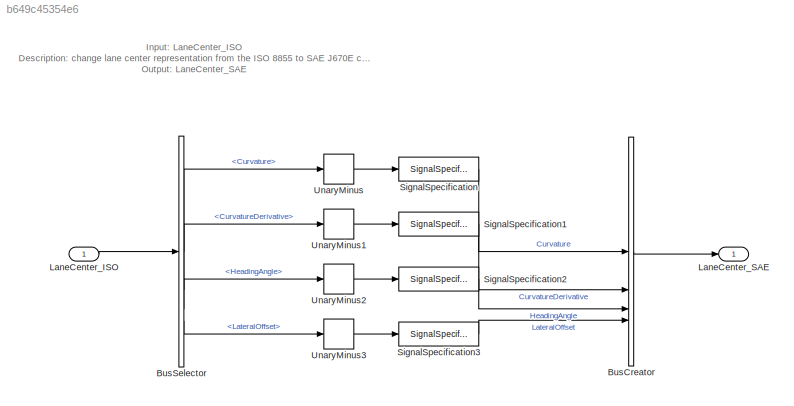
MODEL slx_b649c45354e6
KIND model
CONFIG AbsTol = auto
CONFIG EnableMultiTasking = on
CONFIG FixedStep = auto
CONFIG MaxStep = auto
CONFIG MinStep = auto
CONFIG RelTol = 1e-3
CONFIG SampleTimeConstraint = Unconstrained
CONFIG SolverName = FixedStepDiscrete
CONFIG StartTime = 0.0
CONFIG StopTime = 10.0
BLOCK [BusCreator] BusCreator
  DisplayOption = bar
  InheritFromInputs = on
  Inputs = 4
  OutDataTypeStr = Bus: BusLaneCenter
BLOCK [BusSelector] BusSelector
  OutputSignals = Curvature,CurvatureDerivative,HeadingAngle,LateralOffset
BLOCK [Inport] LaneCenter_ISO
  OutDataTypeStr = Bus: BusLaneCenter
  PortDimensions = 1
  SampleTime = Ts
BLOCK [Outport] LaneCenter_SAE
  OutDataTypeStr = Bus: BusLaneCenter
  PortDimensions = 1
  SampleTime = Ts
  VectorParamsAs1DForOutWhenUnconnected = off
BLOCK [SignalSpecification] SignalSpecification
  Unit = 1/m
BLOCK [SignalSpecification] SignalSpecification1
  Unit = 1/m^2
BLOCK [SignalSpecification] SignalSpecification2
  Unit = rad
BLOCK [SignalSpecification] SignalSpecification3
  Unit = m
BLOCK [UnaryMinus] UnaryMinus
BLOCK [UnaryMinus] UnaryMinus1
BLOCK [UnaryMinus] UnaryMinus2
BLOCK [UnaryMinus] UnaryMinus3
ANNOTATION (root): Input: LaneCenter_ISO Description: change lane center representation from the ISO 8855 to SAE J670E coordinate system. In SO 8855 positive Y is to the left, whereas it is to the right in SAE J670E Output: LaneCenter_SAE
LINE BusCreator:1 -> LaneCenter_SAE:1
LINE BusSelector:1 -> UnaryMinus:1
LINE BusSelector:2 -> UnaryMinus1:1
LINE BusSelector:3 -> UnaryMinus2:1
LINE BusSelector:4 -> UnaryMinus3:1
LINE LaneCenter_ISO:1 -> BusSelector:1
LINE SignalSpecification1:1 -> BusCreator:2
LINE SignalSpecification2:1 -> BusCreator:3
LINE SignalSpecification3:1 -> BusCreator:4
LINE SignalSpecification:1 -> BusCreator:1
LINE UnaryMinus1:1 -> SignalSpecification1:1
LINE UnaryMinus2:1 -> SignalSpecification2:1
LINE UnaryMinus3:1 -> SignalSpecification3:1
LINE UnaryMinus:1 -> SignalSpecification:1
